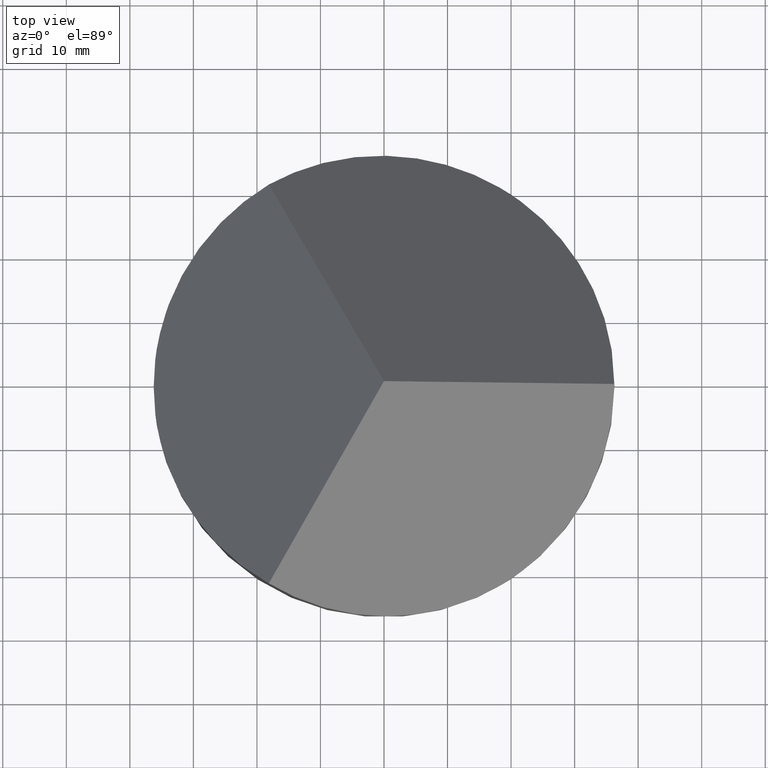
[diagram: clean part render]
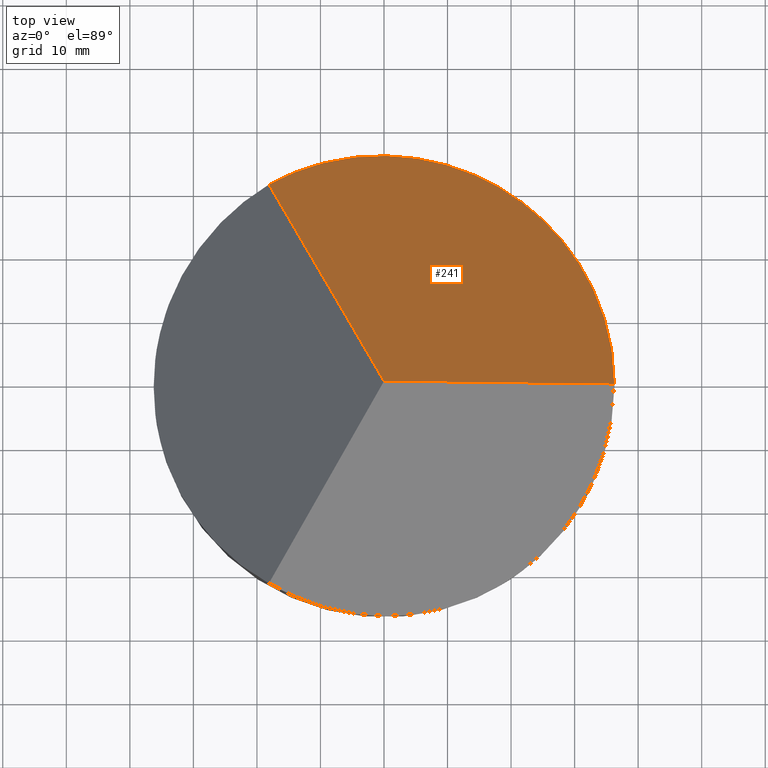
[diagram: same view with one face highlighted and labeled with its STEP entity id]
A machine part, top view. The second image highlights one B-rep face of the part: STEP entity #241.
In plain terms, the highlighted planar face has unit normal (0.4082, 0.7071, 0.5774).
Its self-contained STEP definition (entity closure, byte-faithful):
#5 = VECTOR ( 'NONE', #206, 1000.000000000000100 ) ;
#19 = DIRECTION ( 'NONE',  ( -0.8165531063768112200, -1.225163215160280000E-016, 0.5772703218305786900 ) ) ;
#23 = CARTESIAN_POINT ( 'NONE',  ( 36.25000000000002100, 3.536864344184175900E-015, 26.72270276368058400 ) ) ;
#29 =( BOUNDED_CURVE ( )  B_SPLINE_CURVE ( 3, ( #162, #68, #72, #43 ),
 .UNSPECIFIED., .F., .T. ) 
 B_SPLINE_CURVE_WITH_KNOTS ( ( 4, 4 ),
 ( 5.235987755982986200, 7.330382858376182800 ),
 .UNSPECIFIED. ) 
 CURVE ( )  GEOMETRIC_REPRESENTATION_ITEM ( )  RATIONAL_B_SPLINE_CURVE ( ( 1.000000000000000000, 0.6666666666666663000, 0.6666666666666663000, 1.000000000000000000 ) ) 
 REPRESENTATION_ITEM ( '' )  );
#37 = EDGE_CURVE ( 'NONE', #123, #79, #255, .T. ) ;
#43 = CARTESIAN_POINT ( 'NONE',  ( -18.12500000000005000, 31.39342088718588600, 26.72270276368042400 ) ) ;
#46 = CARTESIAN_POINT ( 'NONE',  ( 53.69357503463527300, -30.99999999999985400, 52.35000000000000100 ) ) ;
#63 = LINE ( 'NONE', #312, #281 ) ;
#68 = CARTESIAN_POINT ( 'NONE',  ( 36.25000000000000700, 31.39342088718594000, -11.71824309079878500 ) ) ;
#72 = CARTESIAN_POINT ( 'NONE',  ( 9.062499999999966200, 47.09013133077888100, -11.71824309079887200 ) ) ;
#79 = VERTEX_POINT ( 'NONE', #82 ) ;
#82 = CARTESIAN_POINT ( 'NONE',  ( -3.469446951953614200E-015, -4.420505172018915700E-015, 52.35000000000000100 ) ) ;
#87 = EDGE_CURVE ( 'NONE', #103, #123, #29, .T. ) ;
#95 = EDGE_LOOP ( 'NONE', ( #234, #286, #171 ) ) ;
#103 = VERTEX_POINT ( 'NONE', #23 ) ;
#114 = DIRECTION ( 'NONE',  ( 0.0000000000000000000, -0.6325343505460011600, 0.7745323075116675700 ) ) ;
#123 = VERTEX_POINT ( 'NONE', #239 ) ;
#152 = CARTESIAN_POINT ( 'NONE',  ( 11.40424666751465900, -19.75273465018337800, 68.47469070922507200 ) ) ;
#162 = CARTESIAN_POINT ( 'NONE',  ( 36.25000000000002100, 3.536864344184175900E-015, 26.72270276368058400 ) ) ;
#171 = ORIENTED_EDGE ( 'NONE', *, *, #37, .T. ) ;
#184 = PLANE ( 'NONE',  #252 ) ;
#200 = FACE_OUTER_BOUND ( 'NONE', #95, .T. ) ;
#206 = DIRECTION ( 'NONE',  ( 0.4082765531884057200, -0.7071557336614134900, 0.5772703218305811300 ) ) ;
#234 = ORIENTED_EDGE ( 'NONE', *, *, #240, .F. ) ;
#239 = CARTESIAN_POINT ( 'NONE',  ( -18.12500000000005000, 31.39342088718588600, 26.72270276368042400 ) ) ;
#240 = EDGE_CURVE ( 'NONE', #103, #79, #63, .T. ) ;
#241 = ADVANCED_FACE ( 'NONE', ( #200 ), #184, .T. ) ;
#252 = AXIS2_PLACEMENT_3D ( 'NONE', #46, #282, #114 ) ;
#255 = LINE ( 'NONE', #152, #5 ) ;
#281 = VECTOR ( 'NONE', #19, 1000.000000000000200 ) ;
#282 = DIRECTION ( 'NONE',  ( 0.4082200218682778300, 0.7070578185427396400, 0.5774302165486711000 ) ) ;
#286 = ORIENTED_EDGE ( 'NONE', *, *, #87, .T. ) ;
#312 = CARTESIAN_POINT ( 'NONE',  ( 35.80067308283096800, 3.469446951953614200E-015, 27.04035888678597000 ) ) ;